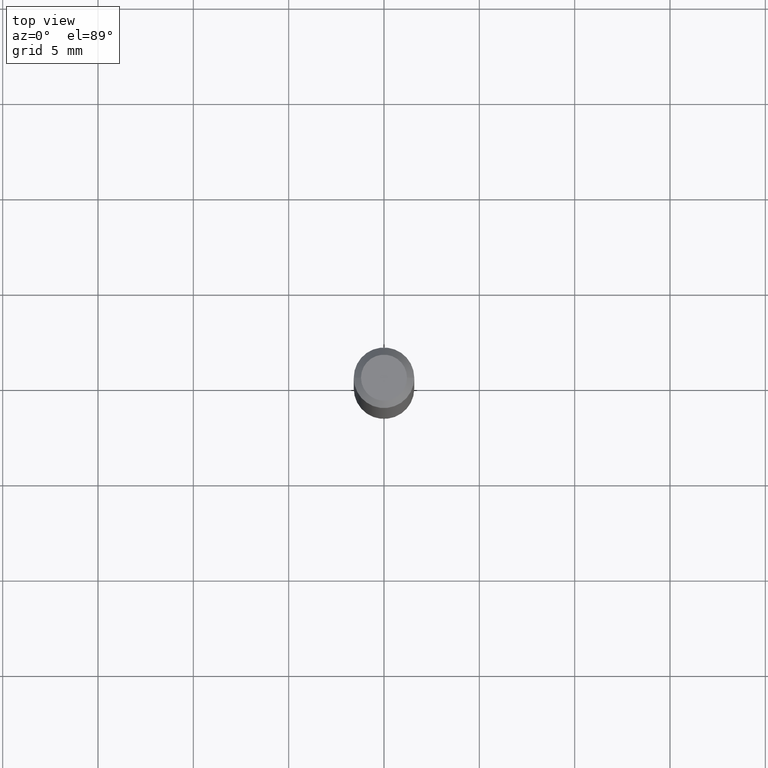
[diagram: clean part render]
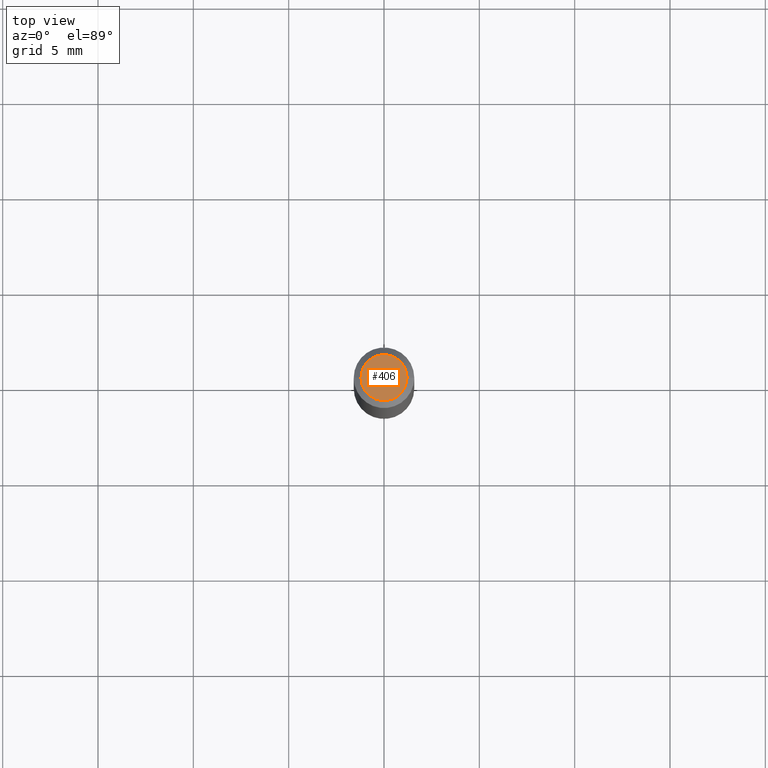
[diagram: same view with one face highlighted and labeled with its STEP entity id]
A machine part, top view. The second image highlights one B-rep face of the part: STEP entity #406.
In plain terms, the highlighted planar face has unit normal (0, -0, -1).
Its self-contained STEP definition (entity closure, byte-faithful):
#57 = ORIENTED_EDGE ( 'NONE', *, *, #143, .T. ) ;
#73 = ORIENTED_EDGE ( 'NONE', *, *, #285, .T. ) ;
#117 = CARTESIAN_POINT ( 'NONE',  ( -6.680649051745406845E-45, 9.538196290434862081E-31, 2.731847993664263218E-16 ) ) ;
#134 = CIRCLE ( 'NONE', #392, 0.04750000000000000749 ) ;
#143 = EDGE_CURVE ( 'NONE', #338, #404, #343, .T. ) ;
#152 = DIRECTION ( 'NONE',  ( 1.000000000000000000, -6.982962677686266711E-15, 4.852736867747365086E-29 ) ) ;
#173 = PLANE ( 'NONE',  #381 ) ;
#176 = AXIS2_PLACEMENT_3D ( 'NONE', #439, #357, #152 ) ;
#184 = CARTESIAN_POINT ( 'NONE',  ( 0.04750000000000000749, -4.035134999187568762E-16, 2.731847993664288856E-16 ) ) ;
#210 = CARTESIAN_POINT ( 'NONE',  ( 3.316907271900976589E-16, 0.04750000000000000749, -2.925296391183627249E-17 ) ) ;
#218 = DIRECTION ( 'NONE',  ( 2.438088387897960049E-29, -3.491481338843145188E-15, -1.000000000000000000 ) ) ;
#242 = DIRECTION ( 'NONE',  ( 1.000000000000000000, -6.982962677686266711E-15, 4.852736867747365086E-29 ) ) ;
#254 = CARTESIAN_POINT ( 'NONE',  ( -0.04750000000000000749, 3.578768372314221353E-16, 2.731847993664239060E-16 ) ) ;
#269 = DIRECTION ( 'NONE',  ( -1.000000000000000000, 6.982962677686265922E-15, -4.876176775795935793E-29 ) ) ;
#279 = DIRECTION ( 'NONE',  ( -2.445468806185136597E-29, 3.491481338843145583E-15, 1.000000000000000000 ) ) ;
#285 = EDGE_CURVE ( 'NONE', #404, #338, #134, .T. ) ;
#286 = FACE_OUTER_BOUND ( 'NONE', #371, .T. ) ;
#338 = VERTEX_POINT ( 'NONE', #254 ) ;
#343 = CIRCLE ( 'NONE', #176, 0.04750000000000000749 ) ;
#357 = DIRECTION ( 'NONE',  ( -2.445468806185136597E-29, 3.491481338843145583E-15, 1.000000000000000000 ) ) ;
#371 = EDGE_LOOP ( 'NONE', ( #57, #73 ) ) ;
#381 = AXIS2_PLACEMENT_3D ( 'NONE', #210, #218, #269 ) ;
#392 = AXIS2_PLACEMENT_3D ( 'NONE', #117, #279, #242 ) ;
#404 = VERTEX_POINT ( 'NONE', #184 ) ;
#406 = ADVANCED_FACE ( 'NONE', ( #286 ), #173, .F. ) ;
#439 = CARTESIAN_POINT ( 'NONE',  ( -6.680649051745406845E-45, 9.538196290434862081E-31, 2.731847993664263218E-16 ) ) ;